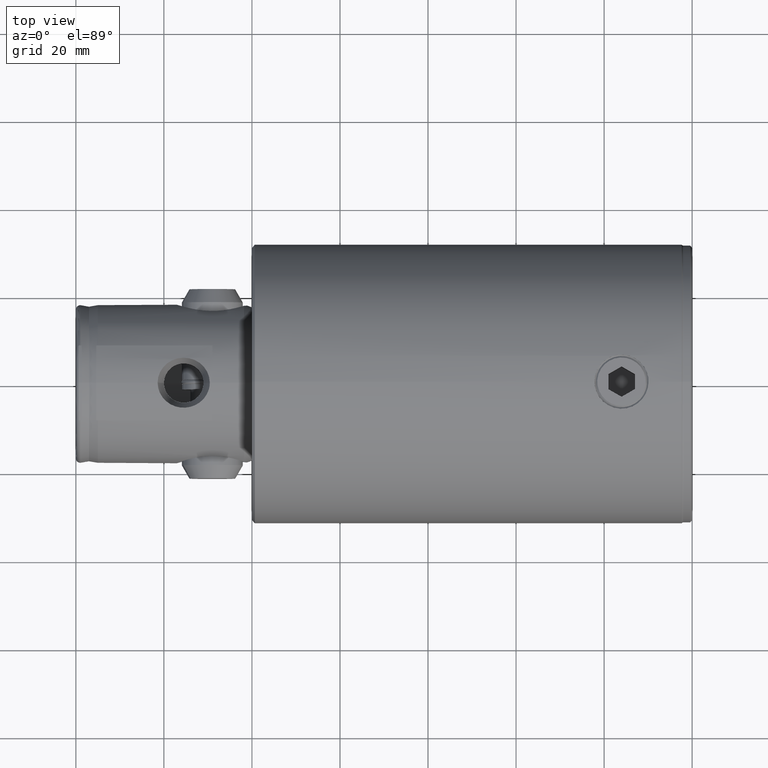
[diagram: clean part render]
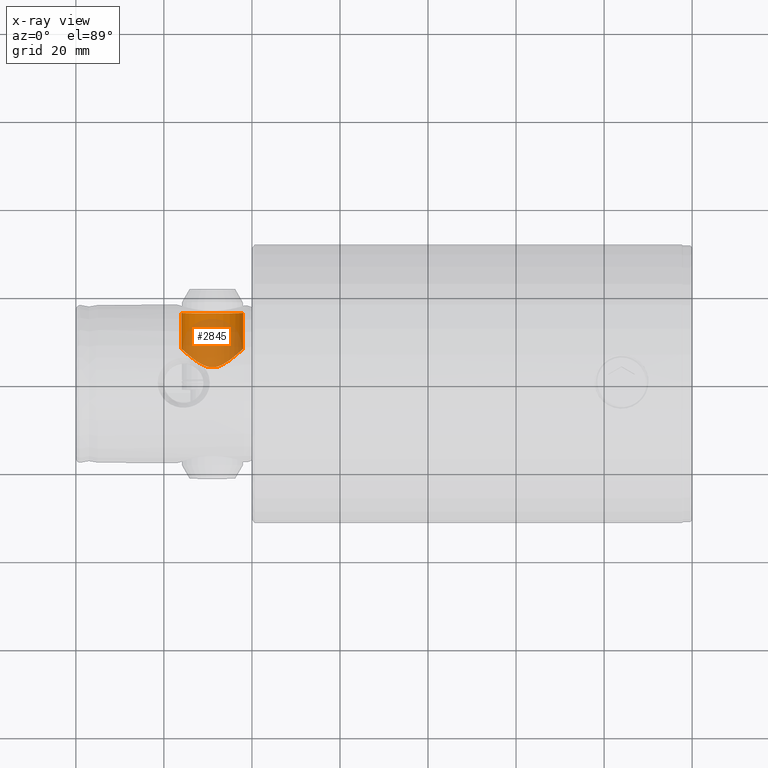
[diagram: x-ray — body ghosted, one internal face saturated and labeled with its STEP entity id]
A machine part, top view, then the same camera in x-ray: the body is ghosted and one INTERNAL B-rep face — a face not visible from any outside direction — is saturated and labeled: STEP entity #2845.
In plain terms, the highlighted cylindrical surface (edge-blend (fillet) strip) has radius 7 mm, axis along (0, 1, 0).
Its self-contained STEP definition (entity closure, byte-faithful):
#3 = DIRECTION ( 'NONE',  ( 0.0000000000000000000, 1.000000000000000000, 0.0000000000000000000 ) ) ;
#49 = CARTESIAN_POINT ( 'NONE',  ( -0.9829308747289107200, 7.943208445127383200, 102.0649642998596500 ) ) ;
#58 = VERTEX_POINT ( 'NONE', #2001 ) ;
#209 = CYLINDRICAL_SURFACE ( 'NONE', #3798, 7.000000000000006200 ) ;
#265 = EDGE_CURVE ( 'NONE', #989, #58, #4955, .T. ) ;
#308 = CARTESIAN_POINT ( 'NONE',  ( -6.257240187971040900, 4.987242544489390600, 105.8546750019193200 ) ) ;
#328 = CARTESIAN_POINT ( 'NONE',  ( -2.618978976449605900, 7.562617211367747700, 115.4958122132767200 ) ) ;
#339 = DIRECTION ( 'NONE',  ( 0.0000000000000000000, 0.0000000000000000000, 1.000000000000000000 ) ) ;
#414 = CARTESIAN_POINT ( 'NONE',  ( -1.229370537485622500, 7.908707812788216000, 102.1044727772611500 ) ) ;
#670 = CARTESIAN_POINT ( 'NONE',  ( -6.987094224917448100, 3.896563466422654700, 109.4900454490439000 ) ) ;
#688 = CARTESIAN_POINT ( 'NONE',  ( -6.741552401771127900, 4.308927434169566700, 110.8980998342957300 ) ) ;
#708 = CARTESIAN_POINT ( 'NONE',  ( -5.324559587577483400, 5.983166029645461000, 104.4354161680393700 ) ) ;
#723 = CARTESIAN_POINT ( 'NONE',  ( -6.933985420167153400, 3.990316718327374900, 108.0104743187384500 ) ) ;
#771 = CARTESIAN_POINT ( 'NONE',  ( 1.139402641566181400E-015, 7.999999999999976000, 116.0000000000000000 ) ) ;
#989 = VERTEX_POINT ( 'NONE', #771 ) ;
#997 = EDGE_CURVE ( 'NONE', #989, #2026, #4139, .T. ) ;
#1008 = CARTESIAN_POINT ( 'NONE',  ( 8.572527594031474200E-016, 16.14999999999998400, 102.0000000000000100 ) ) ;
#1036 = CARTESIAN_POINT ( 'NONE',  ( -5.595197448291442800, 5.728197329652259000, 113.2279049808127700 ) ) ;
#1055 = CARTESIAN_POINT ( 'NONE',  ( -5.324359612356513300, 5.983301337816265600, 113.5647483613714300 ) ) ;
#1072 = CARTESIAN_POINT ( 'NONE',  ( -6.897551808163942000, 4.053715630958561400, 110.2161564655569400 ) ) ;
#1088 = CARTESIAN_POINT ( 'NONE',  ( -0.5014398034479015100, 7.999999999999974200, 116.0000000000000100 ) ) ;
#1106 = CARTESIAN_POINT ( 'NONE',  ( -6.999793285552307500, 3.873356959762706900, 108.7445683922642800 ) ) ;
#1347 = DIRECTION ( 'NONE',  ( 0.0000000000000000000, 1.000000000000000000, 0.0000000000000000000 ) ) ;
#1418 = VERTEX_POINT ( 'NONE', #1008 ) ;
#1437 = CARTESIAN_POINT ( 'NONE',  ( -4.379417361226019900, 6.697907354937417100, 103.5347443710247600 ) ) ;
#1453 = CARTESIAN_POINT ( 'NONE',  ( -3.840574061778588600, 7.020999026813936600, 103.1434171167772300 ) ) ;
#1498 = CARTESIAN_POINT ( 'NONE',  ( -6.052650921825956800, 5.233646891608590800, 105.4769983065530000 ) ) ;
#1513 = CARTESIAN_POINT ( 'NONE',  ( -4.713681677383221700, 6.467029024477493900, 103.8202779458589600 ) ) ;
#1520 = DIRECTION ( 'NONE',  ( 0.0000000000000000000, 1.000000000000000000, 0.0000000000000000000 ) ) ;
#1634 = CARTESIAN_POINT ( 'NONE',  ( 0.0000000000000000000, -20.00000000000000000, 116.0000000000000000 ) ) ;
#1750 = EDGE_CURVE ( 'NONE', #58, #1418, #3260, .T. ) ;
#1819 = CARTESIAN_POINT ( 'NONE',  ( -6.895429150598698900, 4.057348946457085300, 107.7717264069929500 ) ) ;
#1840 = CARTESIAN_POINT ( 'NONE',  ( -2.398648764415521700, 7.645846592546375200, 102.4069203842921500 ) ) ;
#1857 = CARTESIAN_POINT ( 'NONE',  ( -1.940995588507324500, 7.764595202769831100, 115.7298100651998400 ) ) ;
#1890 = CARTESIAN_POINT ( 'NONE',  ( -1.704223459645343200, 7.820122452281382600, 115.7937431691061100 ) ) ;
#1959 = DIRECTION ( 'NONE',  ( 0.0000000000000000000, 1.000000000000000000, 0.0000000000000000000 ) ) ;
#2001 = CARTESIAN_POINT ( 'NONE',  ( 8.572005767996020600E-016, 7.999999999999976000, 102.0000000000000000 ) ) ;
#2026 = VERTEX_POINT ( 'NONE', #3162 ) ;
#2133 = CARTESIAN_POINT ( 'NONE',  ( 8.572527594031474200E-016, -20.00000000000000000, 102.0000000000000000 ) ) ;
#2266 = CARTESIAN_POINT ( 'NONE',  ( -0.9897341065845154400, 7.953313616008640200, 115.9467777991662700 ) ) ;
#2316 = CARTESIAN_POINT ( 'NONE',  ( -0.4922276223738232800, 7.988643531602257000, 102.0129702137110400 ) ) ;
#2416 = VECTOR ( 'NONE', #1347, 1000.000000000000000 ) ;
#2606 = CARTESIAN_POINT ( 'NONE',  ( -4.724197274312510700, 6.467662660821555500, 114.1834055405413000 ) ) ;
#2622 = CARTESIAN_POINT ( 'NONE',  ( -3.845961530444077100, 7.018070913974477200, 114.8530772132884700 ) ) ;
#2639 = CARTESIAN_POINT ( 'NONE',  ( -6.748001086584907600, 4.301229581459346600, 107.0798754998001700 ) ) ;
#2662 = CARTESIAN_POINT ( 'NONE',  ( 0.0000000000000000000, 16.14999999999998400, 109.0000000000000000 ) ) ;
#2693 = DIRECTION ( 'NONE',  ( 0.0000000000000000000, 0.0000000000000000000, 1.000000000000000000 ) ) ;
#2845 = ADVANCED_FACE ( 'NONE', ( #4851 ), #209, .F. ) ;
#2886 = AXIS2_PLACEMENT_3D ( 'NONE', #2662, #1520, #339 ) ;
#2986 = CARTESIAN_POINT ( 'NONE',  ( -6.800424305957512200, 4.214624612219426000, 110.6761523659751300 ) ) ;
#3000 = CARTESIAN_POINT ( 'NONE',  ( -6.526671817880724400, 4.628545511031209300, 111.5397738718268100 ) ) ;
#3015 = CARTESIAN_POINT ( 'NONE',  ( -5.590136760630717700, 5.733064380958773600, 104.7656011032472800 ) ) ;
#3033 = CARTESIAN_POINT ( 'NONE',  ( -6.985991032564085000, 3.898552373970091400, 108.4947830427420900 ) ) ;
#3054 = CARTESIAN_POINT ( 'NONE',  ( -6.352328561495822300, 4.865072888620793500, 106.0511048746683500 ) ) ;
#3110 = CARTESIAN_POINT ( 'NONE',  ( -1.945759578019479000, 7.774963949146439300, 102.2581449098614000 ) ) ;
#3162 = CARTESIAN_POINT ( 'NONE',  ( 0.0000000000000000000, 16.14999999999998400, 115.9999999999999900 ) ) ;
#3260 = LINE ( 'NONE', #2133, #2416 ) ;
#3355 = CARTESIAN_POINT ( 'NONE',  ( 1.139402641566181400E-015, 7.999999999999976000, 116.0000000000000000 ) ) ;
#3371 = CARTESIAN_POINT ( 'NONE',  ( -3.045389376261336900, 7.401265097934309100, 102.6927694488405900 ) ) ;
#3389 = CARTESIAN_POINT ( 'NONE',  ( -4.394178221185333300, 6.698518907145274400, 114.4672597884085000 ) ) ;
#3568 = ORIENTED_EDGE ( 'NONE', *, *, #997, .F. ) ;
#3588 = EDGE_CURVE ( 'NONE', #1418, #2026, #4531, .T. ) ;
#3719 = VECTOR ( 'NONE', #1959, 1000.000000000000000 ) ;
#3723 = CARTESIAN_POINT ( 'NONE',  ( -5.942792252127672400, 5.358417144805383900, 105.2948466964381700 ) ) ;
#3741 = CARTESIAN_POINT ( 'NONE',  ( -4.204993759022035400, 6.808998747621747500, 103.3993214983674000 ) ) ;
#3777 = CARTESIAN_POINT ( 'NONE',  ( -3.653169987805637400, 7.120640764517210300, 114.9755528362944100 ) ) ;
#3791 = CARTESIAN_POINT ( 'NONE',  ( -4.873646926052378700, 6.347036180389365800, 103.9706704492203900 ) ) ;
#3798 = AXIS2_PLACEMENT_3D ( 'NONE', #4195, #3, #2693 ) ;
#3873 = ORIENTED_EDGE ( 'NONE', *, *, #265, .T. ) ;
#4105 = CARTESIAN_POINT ( 'NONE',  ( -7.000202025383213600, 3.872618207624675300, 109.2439732577854000 ) ) ;
#4125 = CARTESIAN_POINT ( 'NONE',  ( -3.650583855692018300, 7.121915517080437600, 103.0229330675536100 ) ) ;
#4139 = LINE ( 'NONE', #1634, #3719 ) ;
#4142 = CARTESIAN_POINT ( 'NONE',  ( -2.398179186925284900, 7.635780190974563700, 115.5807707736760400 ) ) ;
#4163 = CARTESIAN_POINT ( 'NONE',  ( -3.253101657275645900, 7.312079421377922600, 115.2024359945572900 ) ) ;
#4195 = CARTESIAN_POINT ( 'NONE',  ( 0.0000000000000000000, -20.00000000000000000, 109.0000000000000000 ) ) ;
#4312 = ORIENTED_EDGE ( 'NONE', *, *, #3588, .T. ) ;
#4423 = ORIENTED_EDGE ( 'NONE', *, *, #1750, .T. ) ;
#4504 = CARTESIAN_POINT ( 'NONE',  ( -3.253478206159024400, 7.311861779459361400, 102.7978252874954100 ) ) ;
#4522 = CARTESIAN_POINT ( 'NONE',  ( -6.610445899365409200, 4.515091856288079500, 106.6560188854933800 ) ) ;
#4531 = CIRCLE ( 'NONE', #2886, 6.999999999999992000 ) ;
#4544 = CARTESIAN_POINT ( 'NONE',  ( -6.269568954821389500, 4.977551545163907900, 112.1438973383478700 ) ) ;
#4580 = CARTESIAN_POINT ( 'NONE',  ( -6.604730887745672500, 4.515851450083743200, 111.3299874822062600 ) ) ;
#4600 = CARTESIAN_POINT ( 'NONE',  ( 8.572005767996020600E-016, 7.999999999999976000, 102.0000000000000000 ) ) ;
#4606 = EDGE_LOOP ( 'NONE', ( #3873, #4423, #4312, #3568 ) ) ;
#4639 = CARTESIAN_POINT ( 'NONE',  ( -0.2463674248415565200, 7.999999999999977800, 102.0000000000000100 ) ) ;
#4851 = FACE_OUTER_BOUND ( 'NONE', #4606, .T. ) ;
#4901 = CARTESIAN_POINT ( 'NONE',  ( -3.046443253602712600, 7.400771140046096300, 115.3066481344544800 ) ) ;
#4937 = CARTESIAN_POINT ( 'NONE',  ( -6.935960449576289700, 3.986871605362778400, 109.9757473504534700 ) ) ;
#4953 = CARTESIAN_POINT ( 'NONE',  ( -6.066531636867237500, 5.226439804655865600, 112.5183247307542700 ) ) ;
#4955 = B_SPLINE_CURVE_WITH_KNOTS ( 'NONE', 3,
 ( #3355, #1088, #2266, #1890, #1857, #4142, #328, #4901, #4163, #3777, #2622, #3389, #2606, #1055, #1036, #4953, #4544, #3000, #4580, #688, #2986, #1072, #4937, #670, #4105, #1106, #3033, #723, #1819, #2639, #4522, #3054, #308, #1498, #3723, #3015, #708, #3791, #1513, #1437, #3741, #1453, #4125, #4504, #3371, #1840, #3110, #414, #49, #2316, #4639, #4600 ),
 .UNSPECIFIED., .F., .F.,
 ( 4, 2, 2, 2, 2, 2, 2, 2, 2, 2, 2, 2, 2, 2, 2, 2, 2, 2, 2, 2, 2, 2, 2, 2, 2, 4 ),
 ( 1.101428683183440300E-018, 0.001479039045995306000, 0.002218558568992958500, 0.002958078091990611600, 0.003697597614988264700, 0.004437117137985916900, 0.005916156183981223200, 0.007395195229976527600, 0.008874234275971832100, 0.009613753798969485200, 0.01035327332196713800, 0.01109279284496479000, 0.01183231236796244300, 0.01257183189096009400, 0.01331135141395774700, 0.01479039045995309200, 0.01552990998295078100, 0.01626942950594846900, 0.01774846855194387200, 0.01848798807494158800, 0.01922750759793930400, 0.01996702712093701900, 0.02070654664393473500, 0.02218558568993016600, 0.02292510521292788100, 0.02366462473592559700 ),
 .UNSPECIFIED. ) ;